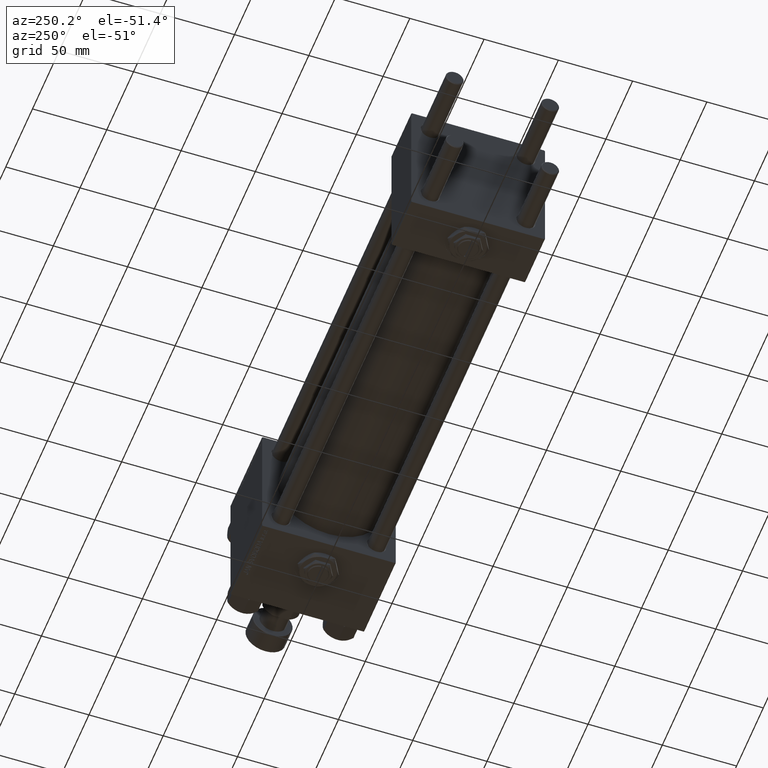
[diagram: clean part render]
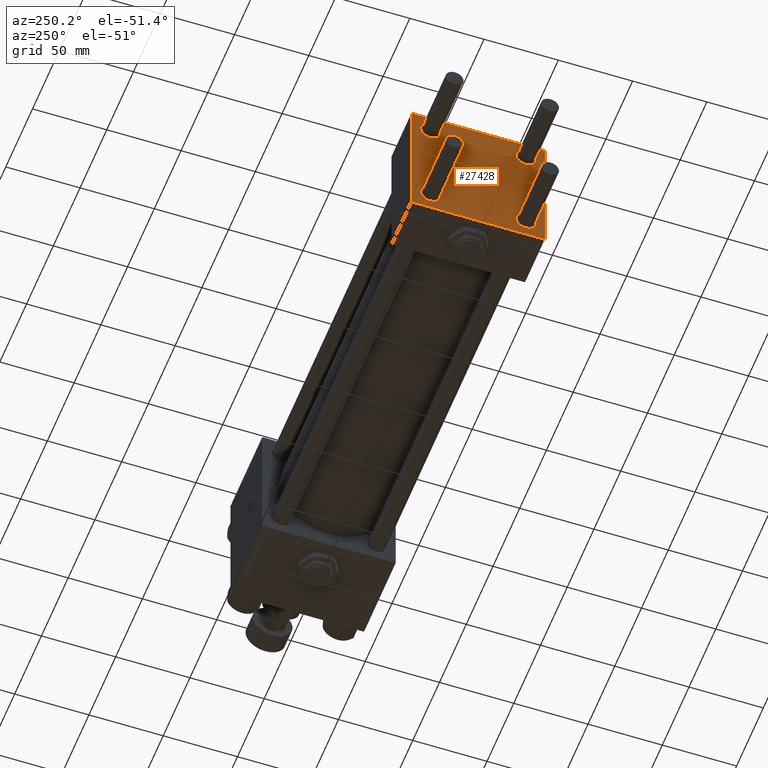
[diagram: same view with one face highlighted and labeled with its STEP entity id]
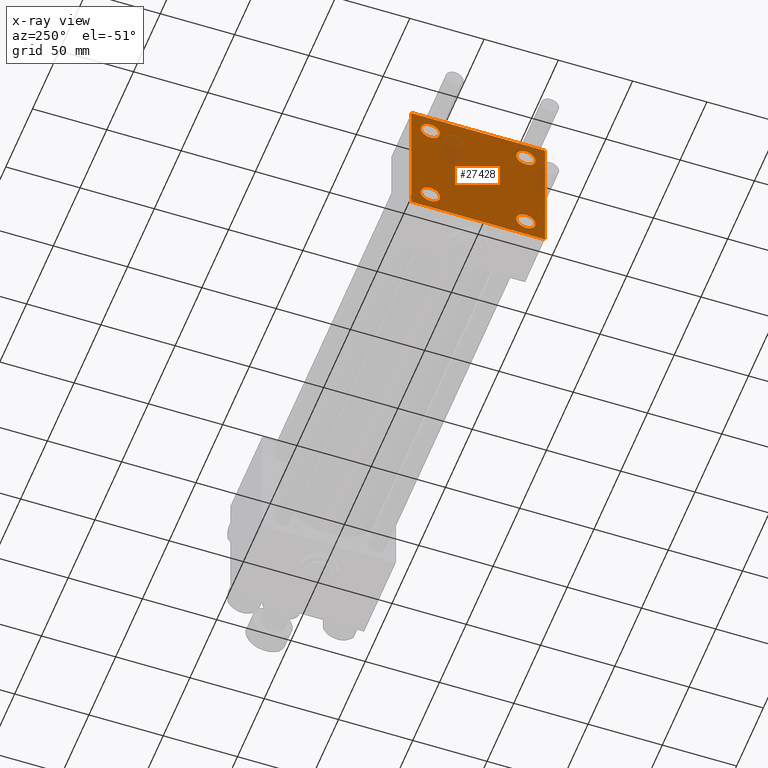
[diagram: x-ray of the same camera — body ghosted, the highlighted face saturated]
A machine part, auxiliary view. The second image highlights one B-rep face of the part: STEP entity #27428.
The next image is the same camera in x-ray: the body ghosted, the highlighted face saturated — about 6% of this face is hidden behind the body in this view.
In plain terms, the highlighted planar face has unit normal (-1, 0, 0).
Its self-contained STEP definition (entity closure, byte-faithful):
#53 = ORIENTED_EDGE ( 'NONE', *, *, #27418, .F. ) ;
#764 = DIRECTION ( 'NONE',  ( 0.000000000000000000, 0.000000000000000000, -1.000000000000000000 ) ) ;
#1147 = CARTESIAN_POINT ( 'NONE',  ( 0.000000000000000000, 32.14999999999999147, 25.65000000000002700 ) ) ;
#1154 = AXIS2_PLACEMENT_3D ( 'NONE', #31587, #4080, #47724 ) ;
#1577 = DIRECTION ( 'NONE',  ( 0.000000000000000000, 0.000000000000000000, 1.000000000000000000 ) ) ;
#2318 = ORIENTED_EDGE ( 'NONE', *, *, #50789, .T. ) ;
#2323 = CIRCLE ( 'NONE', #9077, 6.499999999999977796 ) ;
#2629 = VERTEX_POINT ( 'NONE', #51471 ) ;
#3415 = ORIENTED_EDGE ( 'NONE', *, *, #5582, .T. ) ;
#3662 = EDGE_CURVE ( 'NONE', #19367, #23093, #41692, .T. ) ;
#4080 = DIRECTION ( 'NONE',  ( 1.000000000000000000, -0.000000000000000000, 0.000000000000000000 ) ) ;
#4116 = EDGE_LOOP ( 'NONE', ( #19448, #2318 ) ) ;
#4714 = LINE ( 'NONE', #17922, #18416 ) ;
#5050 = VECTOR ( 'NONE', #39268, 1000.000000000000114 ) ;
#5347 = EDGE_LOOP ( 'NONE', ( #5584, #32452, #38062, #49498, #45097, #8949, #53, #10708 ) ) ;
#5455 = EDGE_CURVE ( 'NONE', #23270, #27938, #13065, .T. ) ;
#5582 = EDGE_CURVE ( 'NONE', #23093, #19367, #47678, .T. ) ;
#5584 = ORIENTED_EDGE ( 'NONE', *, *, #40941, .T. ) ;
#5654 = CARTESIAN_POINT ( 'NONE',  ( 0.000000000000000000, 44.49999999999998579, -44.99999999999998579 ) ) ;
#5752 = DIRECTION ( 'NONE',  ( 1.000000000000000000, -0.000000000000000000, 0.000000000000000000 ) ) ;
#6273 = CARTESIAN_POINT ( 'NONE',  ( 0.000000000000000000, 44.99999999999998579, -44.49999999999995737 ) ) ;
#6747 = VECTOR ( 'NONE', #7394, 1000.000000000000114 ) ;
#7020 = LINE ( 'NONE', #23136, #5050 ) ;
#7394 = DIRECTION ( 'NONE',  ( 0.000000000000000000, -0.7071067811865474617, 0.7071067811865474617 ) ) ;
#7498 = DIRECTION ( 'NONE',  ( 0.000000000000000000, 0.000000000000000000, 1.000000000000000000 ) ) ;
#7679 = LINE ( 'NONE', #39420, #11263 ) ;
#8071 = CARTESIAN_POINT ( 'NONE',  ( 0.000000000000000000, 32.14999999999999147, 32.15000000000000568 ) ) ;
#8949 = ORIENTED_EDGE ( 'NONE', *, *, #9407, .T. ) ;
#9077 = AXIS2_PLACEMENT_3D ( 'NONE', #44971, #16662, #28292 ) ;
#9229 = CARTESIAN_POINT ( 'NONE',  ( -0.000000000000000000, -44.75000000000029843, 44.74999999999967315 ) ) ;
#9407 = EDGE_CURVE ( 'NONE', #24789, #24635, #17423, .T. ) ;
#10531 = AXIS2_PLACEMENT_3D ( 'NONE', #37148, #29465, #42157 ) ;
#10708 = ORIENTED_EDGE ( 'NONE', *, *, #48804, .T. ) ;
#11263 = VECTOR ( 'NONE', #30946, 1000.000000000000114 ) ;
#11555 = FACE_BOUND ( 'NONE', #15791, .T. ) ;
#12209 = EDGE_CURVE ( 'NONE', #46532, #19749, #2323, .T. ) ;
#12403 = CARTESIAN_POINT ( 'NONE',  ( 0.000000000000000000, -44.49999999999995737, 45.00000000000000000 ) ) ;
#12866 = DIRECTION ( 'NONE',  ( -1.000000000000000000, 0.000000000000000000, -0.000000000000000000 ) ) ;
#12887 = DIRECTION ( 'NONE',  ( 0.000000000000000000, 0.000000000000000000, 1.000000000000000000 ) ) ;
#12943 = CARTESIAN_POINT ( 'NONE',  ( 0.000000000000000000, -32.14999999999997726, -25.65000000000003411 ) ) ;
#13065 = CIRCLE ( 'NONE', #10531, 6.500000000000019540 ) ;
#13579 = CIRCLE ( 'NONE', #14402, 6.499999999999977796 ) ;
#14232 = VERTEX_POINT ( 'NONE', #1147 ) ;
#14402 = AXIS2_PLACEMENT_3D ( 'NONE', #8071, #27637, #47992 ) ;
#14834 = EDGE_CURVE ( 'NONE', #19749, #46532, #20146, .T. ) ;
#15134 = DIRECTION ( 'NONE',  ( 0.000000000000000000, 7.709882115452476934E-17, -1.000000000000000000 ) ) ;
#15417 = EDGE_LOOP ( 'NONE', ( #44076, #3415 ) ) ;
#15791 = EDGE_LOOP ( 'NONE', ( #50547, #35440 ) ) ;
#16662 = DIRECTION ( 'NONE',  ( 1.000000000000000000, -0.000000000000000000, 0.000000000000000000 ) ) ;
#16828 = FACE_BOUND ( 'NONE', #49516, .T. ) ;
#16904 = VERTEX_POINT ( 'NONE', #28773 ) ;
#17423 = LINE ( 'NONE', #9229, #24202 ) ;
#17524 = EDGE_CURVE ( 'NONE', #24789, #29332, #37883, .T. ) ;
#17922 = CARTESIAN_POINT ( 'NONE',  ( 0.000000000000000000, 44.99999999999998579, 45.00000000000001421 ) ) ;
#18416 = VECTOR ( 'NONE', #764, 1000.000000000000000 ) ;
#18468 = CARTESIAN_POINT ( 'NONE',  ( 0.000000000000000000, 32.14999999999999147, -32.15000000000000568 ) ) ;
#19339 = AXIS2_PLACEMENT_3D ( 'NONE', #18468, #46773, #1577 ) ;
#19367 = VERTEX_POINT ( 'NONE', #12943 ) ;
#19448 = ORIENTED_EDGE ( 'NONE', *, *, #34027, .T. ) ;
#19749 = VERTEX_POINT ( 'NONE', #41882 ) ;
#20146 = CIRCLE ( 'NONE', #19339, 6.499999999999977796 ) ;
#20517 = DIRECTION ( 'NONE',  ( 0.000000000000000000, -1.000000000000000000, -1.541976423090495387E-16 ) ) ;
#20735 = DIRECTION ( 'NONE',  ( 0.000000000000000000, -1.000000000000000000, -1.541976423090495633E-16 ) ) ;
#20781 = LINE ( 'NONE', #27937, #39035 ) ;
#21168 = CIRCLE ( 'NONE', #25394, 6.500000000000019540 ) ;
#22009 = CARTESIAN_POINT ( 'NONE',  ( 0.000000000000000000, 44.49999999999998579, 45.00000000000001421 ) ) ;
#23093 = VERTEX_POINT ( 'NONE', #45412 ) ;
#23136 = CARTESIAN_POINT ( 'NONE',  ( 0.000000000000000000, 44.74999999999999289, 44.74999999999999289 ) ) ;
#23215 = CARTESIAN_POINT ( 'NONE',  ( 0.000000000000000000, -45.00000000000000000, -44.49999999999995737 ) ) ;
#23270 = VERTEX_POINT ( 'NONE', #28317 ) ;
#23315 = CARTESIAN_POINT ( 'NONE',  ( 0.000000000000000000, -45.00000000000000711, 45.00000000000000000 ) ) ;
#23914 = AXIS2_PLACEMENT_3D ( 'NONE', #32204, #5752, #41735 ) ;
#23967 = FACE_OUTER_BOUND ( 'NONE', #5347, .T. ) ;
#24042 = CARTESIAN_POINT ( 'NONE',  ( 0.000000000000000000, 32.14999999999999147, 38.64999999999999147 ) ) ;
#24202 = VECTOR ( 'NONE', #29315, 1000.000000000000114 ) ;
#24518 = CARTESIAN_POINT ( 'NONE',  ( 0.000000000000000000, -32.14999999999997726, 32.15000000000001279 ) ) ;
#24635 = VERTEX_POINT ( 'NONE', #12403 ) ;
#24789 = VERTEX_POINT ( 'NONE', #46226 ) ;
#24970 = LINE ( 'NONE', #36339, #35066 ) ;
#25394 = AXIS2_PLACEMENT_3D ( 'NONE', #24518, #28488, #12887 ) ;
#26624 = VERTEX_POINT ( 'NONE', #22009 ) ;
#27418 = EDGE_CURVE ( 'NONE', #26624, #24635, #20781, .T. ) ;
#27428 = ADVANCED_FACE ( 'NONE', ( #16828, #47777, #11555, #44075, #23967 ), #49349, .T. ) ;
#27637 = DIRECTION ( 'NONE',  ( 1.000000000000000000, -0.000000000000000000, 0.000000000000000000 ) ) ;
#27689 = ORIENTED_EDGE ( 'NONE', *, *, #5455, .T. ) ;
#27845 = CARTESIAN_POINT ( 'NONE',  ( 0.000000000000000000, -32.14999999999997726, -32.15000000000001279 ) ) ;
#27937 = CARTESIAN_POINT ( 'NONE',  ( 0.000000000000000000, 44.99999999999998579, 45.00000000000001421 ) ) ;
#27938 = VERTEX_POINT ( 'NONE', #40169 ) ;
#28292 = DIRECTION ( 'NONE',  ( 0.000000000000000000, 0.000000000000000000, 1.000000000000000000 ) ) ;
#28317 = CARTESIAN_POINT ( 'NONE',  ( 0.000000000000000000, -32.14999999999997726, 25.64999999999999147 ) ) ;
#28488 = DIRECTION ( 'NONE',  ( 1.000000000000000000, -0.000000000000000000, 0.000000000000000000 ) ) ;
#28773 = CARTESIAN_POINT ( 'NONE',  ( 0.000000000000000000, -44.49999999999995737, -45.00000000000000000 ) ) ;
#29043 = EDGE_CURVE ( 'NONE', #41009, #31865, #7679, .T. ) ;
#29315 = DIRECTION ( 'NONE',  ( -0.000000000000000000, 0.7071067811865425767, 0.7071067811865524577 ) ) ;
#29332 = VERTEX_POINT ( 'NONE', #23215 ) ;
#29465 = DIRECTION ( 'NONE',  ( 1.000000000000000000, -0.000000000000000000, 0.000000000000000000 ) ) ;
#30476 = ORIENTED_EDGE ( 'NONE', *, *, #50393, .T. ) ;
#30787 = AXIS2_PLACEMENT_3D ( 'NONE', #27845, #47685, #7498 ) ;
#30946 = DIRECTION ( 'NONE',  ( -0.000000000000000000, -0.7071067811865474617, -0.7071067811865474617 ) ) ;
#31587 = CARTESIAN_POINT ( 'NONE',  ( 0.000000000000000000, -32.14999999999997726, -32.15000000000001279 ) ) ;
#31865 = VERTEX_POINT ( 'NONE', #5654 ) ;
#32204 = CARTESIAN_POINT ( 'NONE',  ( 0.000000000000000000, 32.14999999999999147, 32.15000000000000568 ) ) ;
#32452 = ORIENTED_EDGE ( 'NONE', *, *, #29043, .T. ) ;
#34027 = EDGE_CURVE ( 'NONE', #49169, #14232, #46735, .T. ) ;
#34150 = EDGE_CURVE ( 'NONE', #31865, #16904, #24970, .T. ) ;
#35066 = VECTOR ( 'NONE', #20735, 1000.000000000000000 ) ;
#35440 = ORIENTED_EDGE ( 'NONE', *, *, #12209, .T. ) ;
#36339 = CARTESIAN_POINT ( 'NONE',  ( 0.000000000000000000, 44.99999999999998579, -44.99999999999998579 ) ) ;
#37148 = CARTESIAN_POINT ( 'NONE',  ( 0.000000000000000000, -32.14999999999997726, 32.15000000000001279 ) ) ;
#37444 = DIRECTION ( 'NONE',  ( -0.000000000000000000, 0.000000000000000000, 1.000000000000000000 ) ) ;
#37883 = LINE ( 'NONE', #23315, #51399 ) ;
#38062 = ORIENTED_EDGE ( 'NONE', *, *, #34150, .T. ) ;
#39035 = VECTOR ( 'NONE', #20517, 1000.000000000000000 ) ;
#39268 = DIRECTION ( 'NONE',  ( 0.000000000000000000, 0.7071067811865474617, -0.7071067811865474617 ) ) ;
#39420 = CARTESIAN_POINT ( 'NONE',  ( 0.000000000000000000, 44.74999999999998579, -44.74999999999998579 ) ) ;
#40169 = CARTESIAN_POINT ( 'NONE',  ( 0.000000000000000000, -32.14999999999997726, 38.65000000000003411 ) ) ;
#40941 = EDGE_CURVE ( 'NONE', #2629, #41009, #4714, .T. ) ;
#41009 = VERTEX_POINT ( 'NONE', #6273 ) ;
#41420 = CARTESIAN_POINT ( 'NONE',  ( 0.000000000000000000, 0.000000000000000000, 0.000000000000000000 ) ) ;
#41692 = CIRCLE ( 'NONE', #1154, 6.499999999999977796 ) ;
#41735 = DIRECTION ( 'NONE',  ( 0.000000000000000000, 0.000000000000000000, 1.000000000000000000 ) ) ;
#41882 = CARTESIAN_POINT ( 'NONE',  ( 0.000000000000000000, 32.14999999999999147, -25.65000000000002700 ) ) ;
#42157 = DIRECTION ( 'NONE',  ( 0.000000000000000000, 0.000000000000000000, 1.000000000000000000 ) ) ;
#42168 = CARTESIAN_POINT ( 'NONE',  ( 0.000000000000000000, 32.14999999999999147, -38.64999999999998437 ) ) ;
#42426 = AXIS2_PLACEMENT_3D ( 'NONE', #41420, #12866, #37444 ) ;
#43623 = CARTESIAN_POINT ( 'NONE',  ( 0.000000000000000000, -44.74999999999998579, -44.74999999999998579 ) ) ;
#44075 = FACE_BOUND ( 'NONE', #4116, .T. ) ;
#44076 = ORIENTED_EDGE ( 'NONE', *, *, #3662, .T. ) ;
#44971 = CARTESIAN_POINT ( 'NONE',  ( 0.000000000000000000, 32.14999999999999147, -32.15000000000000568 ) ) ;
#45097 = ORIENTED_EDGE ( 'NONE', *, *, #17524, .F. ) ;
#45268 = EDGE_CURVE ( 'NONE', #16904, #29332, #50786, .T. ) ;
#45412 = CARTESIAN_POINT ( 'NONE',  ( 0.000000000000000000, -32.14999999999997726, -38.64999999999999147 ) ) ;
#46226 = CARTESIAN_POINT ( 'NONE',  ( 0.000000000000000000, -45.00000000000000711, 44.49999999999997158 ) ) ;
#46532 = VERTEX_POINT ( 'NONE', #42168 ) ;
#46735 = CIRCLE ( 'NONE', #23914, 6.499999999999977796 ) ;
#46773 = DIRECTION ( 'NONE',  ( 1.000000000000000000, -0.000000000000000000, 0.000000000000000000 ) ) ;
#47678 = CIRCLE ( 'NONE', #30787, 6.499999999999977796 ) ;
#47685 = DIRECTION ( 'NONE',  ( 1.000000000000000000, -0.000000000000000000, 0.000000000000000000 ) ) ;
#47724 = DIRECTION ( 'NONE',  ( 0.000000000000000000, 0.000000000000000000, 1.000000000000000000 ) ) ;
#47777 = FACE_BOUND ( 'NONE', #15417, .T. ) ;
#47992 = DIRECTION ( 'NONE',  ( 0.000000000000000000, 0.000000000000000000, 1.000000000000000000 ) ) ;
#48804 = EDGE_CURVE ( 'NONE', #26624, #2629, #7020, .T. ) ;
#49169 = VERTEX_POINT ( 'NONE', #24042 ) ;
#49349 = PLANE ( 'NONE',  #42426 ) ;
#49498 = ORIENTED_EDGE ( 'NONE', *, *, #45268, .T. ) ;
#49516 = EDGE_LOOP ( 'NONE', ( #30476, #27689 ) ) ;
#50393 = EDGE_CURVE ( 'NONE', #27938, #23270, #21168, .T. ) ;
#50547 = ORIENTED_EDGE ( 'NONE', *, *, #14834, .T. ) ;
#50786 = LINE ( 'NONE', #43623, #6747 ) ;
#50789 = EDGE_CURVE ( 'NONE', #14232, #49169, #13579, .T. ) ;
#51399 = VECTOR ( 'NONE', #15134, 1000.000000000000000 ) ;
#51471 = CARTESIAN_POINT ( 'NONE',  ( 0.000000000000000000, 44.99999999999998579, 44.50000000000001421 ) ) ;